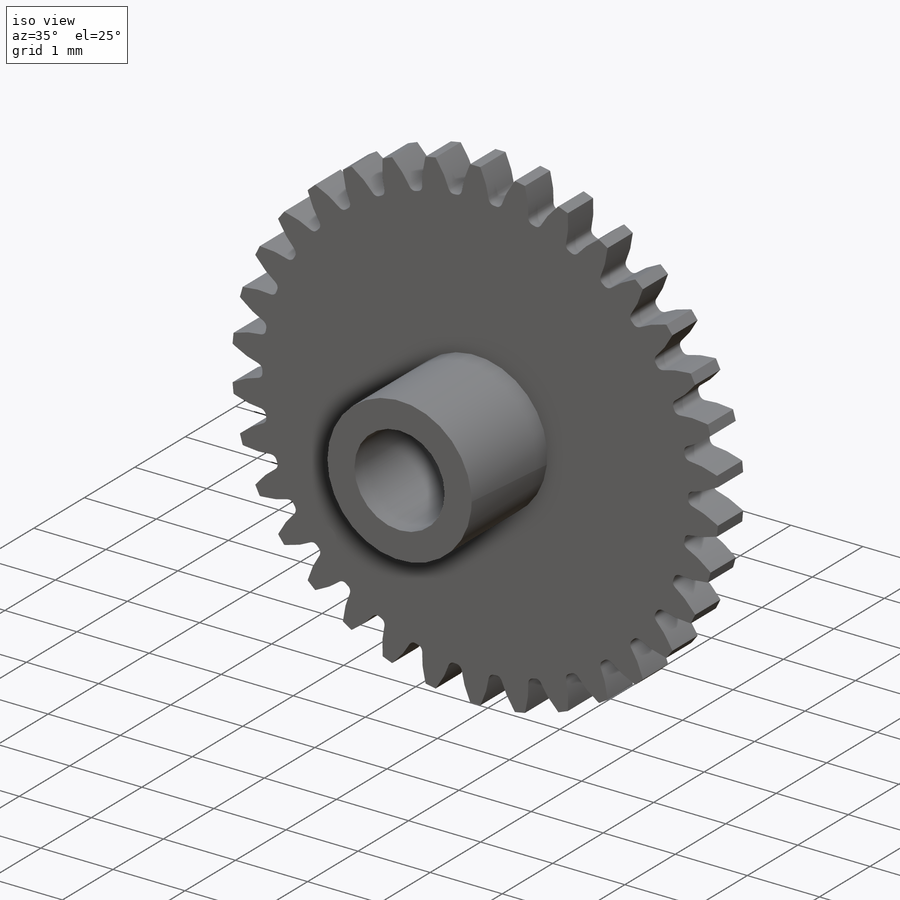
[diagram: iso view]
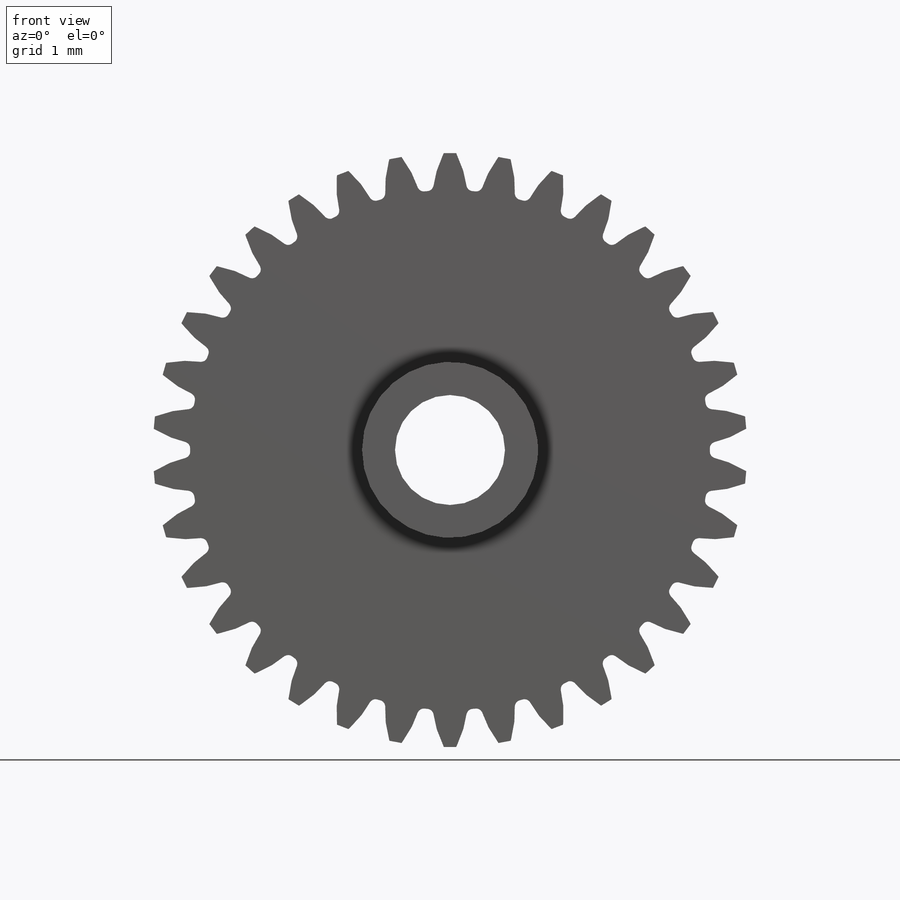
[diagram: front view]
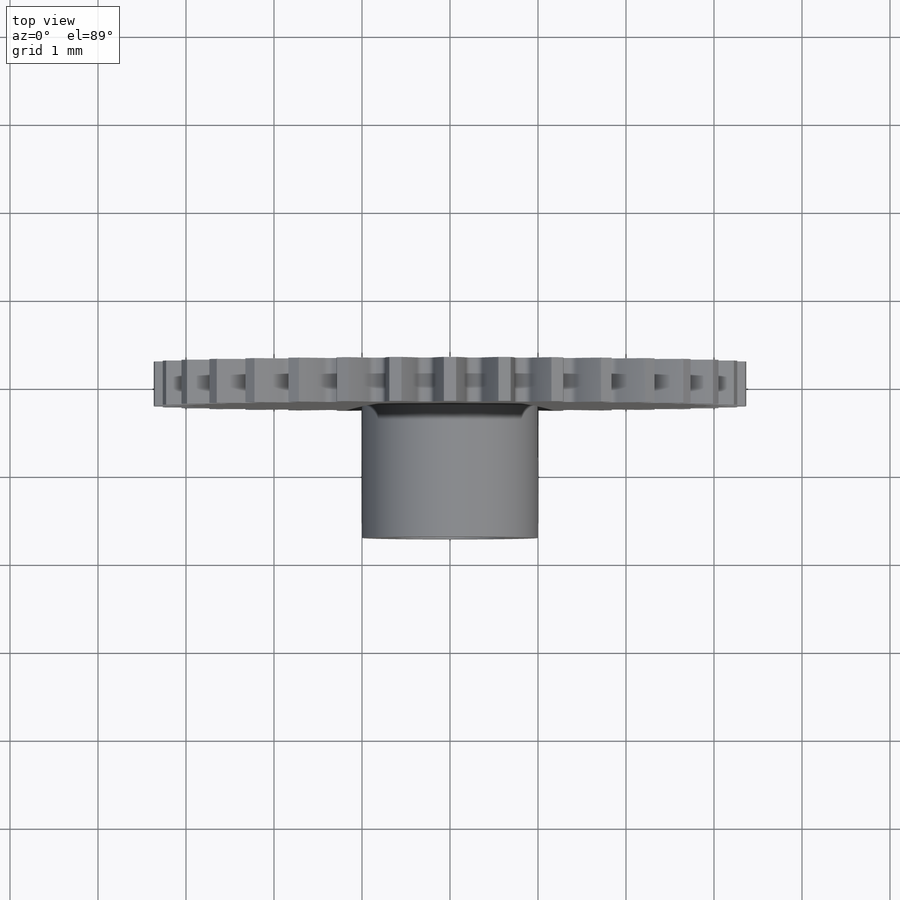
[diagram: top view]
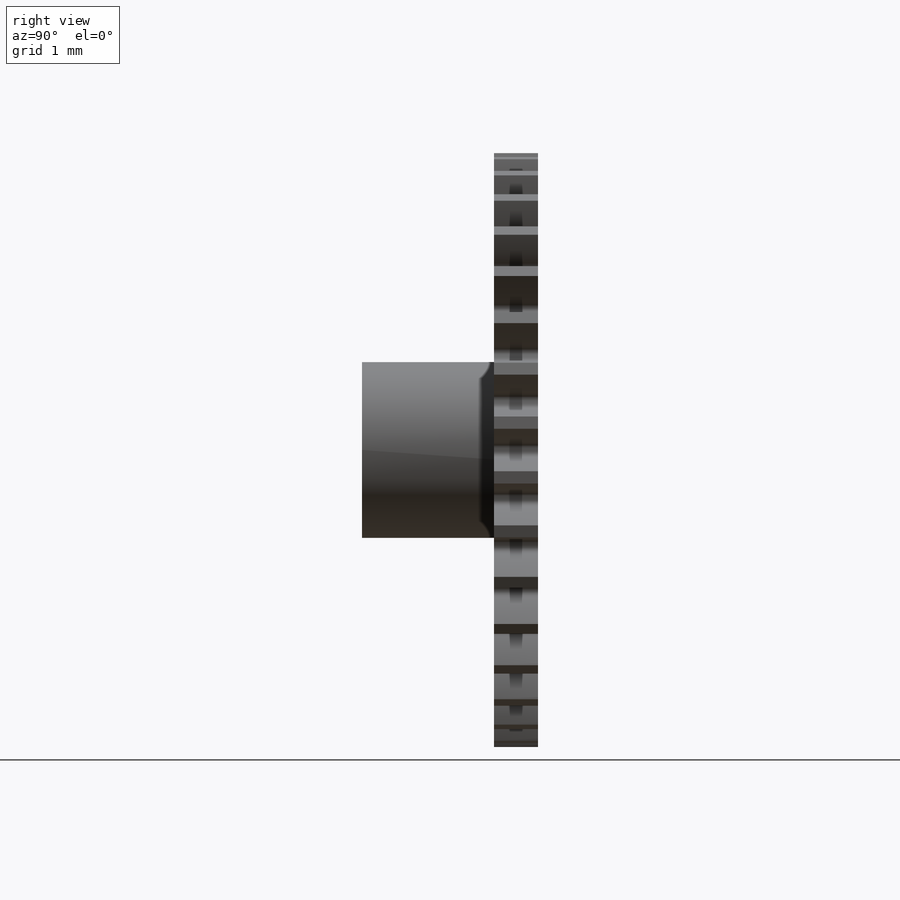
[diagram: right view]
SOLIDWORKS PART (.sldprt)
format: sldprt  version: not decoded by parser v0  size: 310,272 bytes
history: native  units: mm
features: sketch x5, plane x3, cut_extrude x2, material x1, revolve x1, pattern_circular x1, extrude x1 (+8 scaffold rows collapsed)
feature tree (22):
  scaffold x8  (default folders/planes/origin — collapsed)
  material  "Material <sin especificar>"
  plane  "Alzado"
  plane  "Planta"
  plane  "Vista lateral"
  sketch  "SketchRevolveSpur02"
  revolve  "Spur02"  Angle=360deg
  sketch  "SketchToothSpur02"
  cut_extrude  "ToothExtrudeCutSpur02"  Depth=0.25mm
  pattern_circular  "PatternSpur02"  Count=34 Angle=10.588235deg
  sketch  "AuxiliarySketchSpur02"  dims[PitchDiameter=6.375mm BaseDiameter=~5.99054mm FormDiameter=~6.077813mm MajorDiameter=6.75mm MinorDiameter=~5.90625mm]
  sketch  "Croquis5"  dims[D1=2.0mm]
  extrude  "Saliente-Extruir1"  Depth=1.5mm
  sketch  "Croquis6"  dims[D1=1.25mm]
  cut_extrude  "Cortar-Extruir2"  [1 undecoded]
decode coverage: 7 of 10 modeling features carry decoded parameters
note: ~ marks probable driven/reference dimensions
note: 1 parameter value undecoded
note: suppression state not decoded; provenance and decode notes live in map.json
